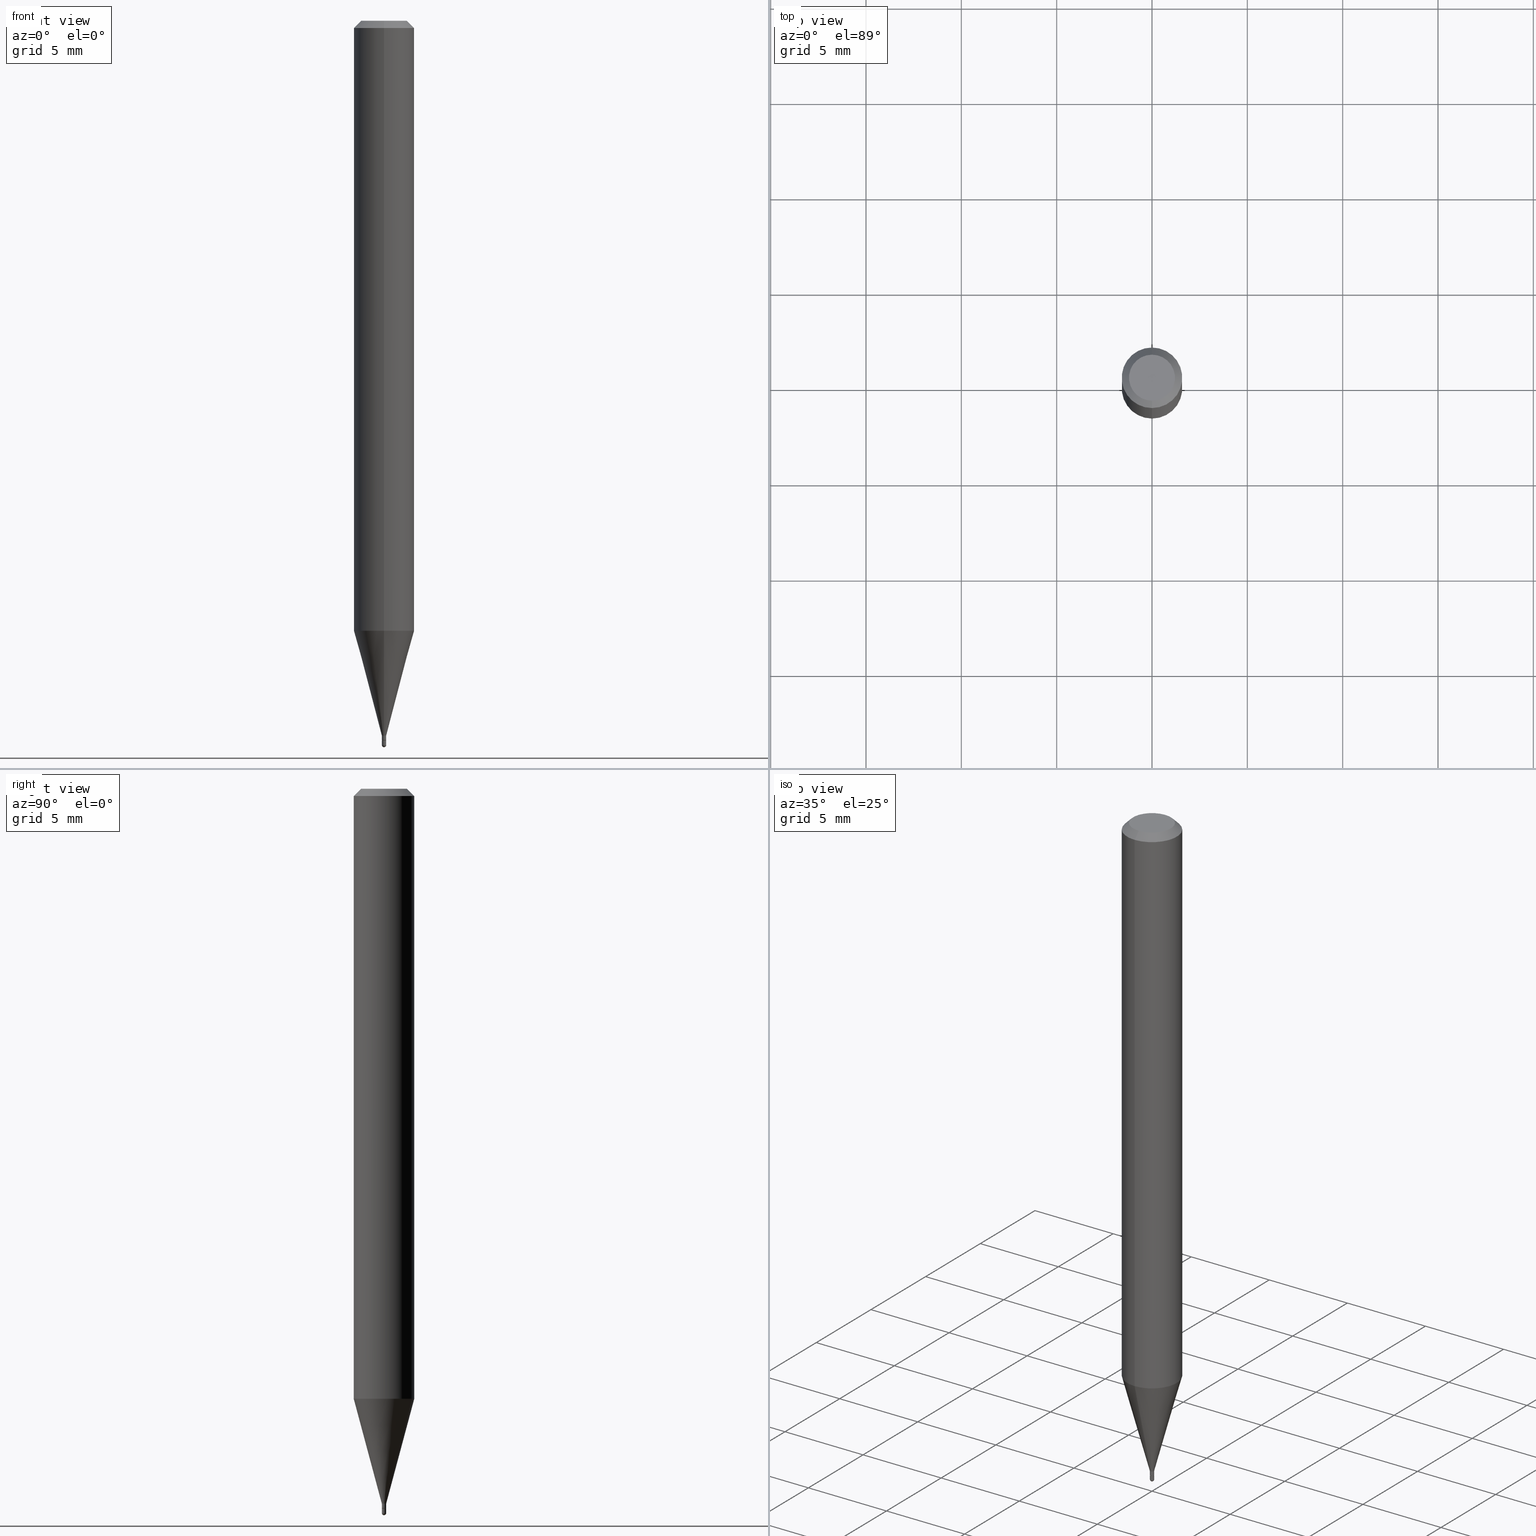
[diagram: canonical four-view strip — front | top / right | iso, engineering-drawing reading convention]
A machine part, canonical four-view strip (front | top / right | iso — engineering-drawing reading convention). The complete STEP part file that produces these views, byte-faithful:
ISO-10303-21;
HEADER;
FILE_DESCRIPTION (( 'STEP AP203' ),
    '1' );
FILE_NAME ('00673.STEP',
    '2024-03-07T18:00:20',
    ( '' ),
    ( '' ),
    'SwSTEP 2.0',
    'SolidWorks 2023',
    '' );
FILE_SCHEMA (( 'CONFIG_CONTROL_DESIGN' ));
ENDSEC;

DATA;
#1 = CARTESIAN_POINT ( 'NONE',  ( 3.633966645991113741E-29, -5.188341269520915288E-15, -1.486000000000000210 ) ) ;
#2 = AXIS2_PLACEMENT_3D ( 'NONE', #282, #399, #48 ) ;
#3 = VECTOR ( 'NONE', #211, 39.37007874015748143 ) ;
#4 = DIRECTION ( 'NONE',  ( -2.445468806185136597E-29, 3.491481338843145583E-15, 1.000000000000000000 ) ) ;
#5 = CIRCLE ( 'NONE', #73, 0.06250000000000000000 ) ;
#6 = ORIENTED_EDGE ( 'NONE', *, *, #191, .T. ) ;
#7 = CARTESIAN_POINT ( 'NONE',  ( 3.633976429077873634E-29, -5.188327259583856289E-15, -1.486000000000000210 ) ) ;
#8 = DIRECTION ( 'NONE',  ( -6.982962677686265922E-15, -1.000000000000000000, 0.000000000000000000 ) ) ;
#9 = VERTEX_POINT ( 'NONE', #132 ) ;
#10 = DIRECTION ( 'NONE',  ( -2.445468806185136597E-29, 3.491481338843145583E-15, 1.000000000000000000 ) ) ;
#11 = CARTESIAN_POINT ( 'NONE',  ( 3.668213084533521426E-31, -5.237207866336330444E-17, -0.01500000000000000812 ) ) ;
#12 = EDGE_CURVE ( 'NONE', #404, #338, #72, .T. ) ;
#13 = DIRECTION ( 'NONE',  ( -2.445468806185136597E-29, 3.491481338843145583E-15, 1.000000000000000000 ) ) ;
#14 = CC_DESIGN_SECURITY_CLASSIFICATION ( #159, ( #38 ) ) ;
#15 = CARTESIAN_POINT ( 'NONE',  ( 3.633976429077873634E-29, -5.188327259583856289E-15, -1.486000000000000210 ) ) ;
#16 = ADVANCED_FACE ( 'NONE', ( #498 ), #302, .T. ) ;
#17 = DIRECTION ( 'NONE',  ( -2.445475389689012778E-29, 3.491471910890885040E-15, 1.000000000000000000 ) ) ;
#18 = DIRECTION ( 'NONE',  ( -6.982962677686265922E-15, -1.000000000000000000, 3.483106191921935554E-15 ) ) ;
#19 = ORIENTED_EDGE ( 'NONE', *, *, #41, .T. ) ;
#20 = DATE_AND_TIME ( #161, #506 ) ;
#21 = FACE_OUTER_BOUND ( 'NONE', #329, .T. ) ;
#22 = ORIENTED_EDGE ( 'NONE', *, *, #510, .F. ) ;
#23 = CALENDAR_DATE ( 2024, 7, 3 ) ;
#24 = CARTESIAN_POINT ( 'NONE',  ( -0.004499999999999999660, 3.197442310920450595E-17, -2.213520790614707297E-31 ) ) ;
#25 = AXIS2_PLACEMENT_3D ( 'NONE', #235, #10, #322 ) ;
#26 = EDGE_LOOP ( 'NONE', ( #127, #502, #299, #375 ) ) ;
#27 = CARTESIAN_POINT ( 'NONE',  ( 3.656813774819742348E-29, -5.222061433299540145E-15, -1.495500000000000274 ) ) ;
#28 = DIRECTION ( 'NONE',  ( -1.000000000000000000, 6.982962677686265922E-15, -4.876176775795935793E-29 ) ) ;
#29 = APPROVAL_ROLE ( '' ) ;
#30 = EDGE_LOOP ( 'NONE', ( #251, #457, #448, #488 ) ) ;
#31 = EDGE_CURVE ( 'NONE', #258, #9, #334, .T. ) ;
#32 = MANIFOLD_SOLID_BREP ( 'Body-Move/Copy2[1]', #385 ) ;
#33 = DIRECTION ( 'NONE',  ( -2.445475389689012497E-29, 3.491471910890885040E-15, 1.000000000000000000 ) ) ;
#34 = VERTEX_POINT ( 'NONE', #387 ) ;
#35 = CARTESIAN_POINT ( 'NONE',  ( 3.656813774819742348E-29, -5.222061433299540145E-15, -1.495500000000000274 ) ) ;
#36 = ORIENTED_EDGE ( 'NONE', *, *, #46, .F. ) ;
#37 = AXIS2_PLACEMENT_3D ( 'NONE', #294, #303, #166 ) ;
#38 = PRODUCT_DEFINITION_FORMATION_WITH_SPECIFIED_SOURCE ( 'ANY', '', #51, .NOT_KNOWN. ) ;
#39 = DIRECTION ( 'NONE',  ( -6.982962677686265922E-15, -1.000000000000000000, 4.370956789862821150E-15 ) ) ;
#40 =( GEOMETRIC_REPRESENTATION_CONTEXT ( 3 ) GLOBAL_UNCERTAINTY_ASSIGNED_CONTEXT ( ( #200 ) ) GLOBAL_UNIT_ASSIGNED_CONTEXT ( ( #351, #501, #421 ) ) REPRESENTATION_CONTEXT ( 'NONE', 'WORKASPACE' ) );
#41 = EDGE_CURVE ( 'NONE', #445, #60, #141, .T. ) ;
#42 = FACE_OUTER_BOUND ( 'NONE', #497, .T. ) ;
#43 = ORIENTED_EDGE ( 'NONE', *, *, #313, .F. ) ;
#44 = AXIS2_PLACEMENT_3D ( 'NONE', #27, #339, #259 ) ;
#45 = FACE_OUTER_BOUND ( 'NONE', #301, .T. ) ;
#46 = EDGE_CURVE ( 'NONE', #384, #176, #276, .T. ) ;
#47 = ORIENTED_EDGE ( 'NONE', *, *, #320, .T. ) ;
#48 = DIRECTION ( 'NONE',  ( -6.982962677686265922E-15, -1.000000000000000000, 3.491471910890885040E-15 ) ) ;
#49 = CYLINDRICAL_SURFACE ( 'NONE', #25, 0.004499999999999999660 ) ;
#50 = ADVANCED_FACE ( 'NONE', ( #273 ), #461, .F. ) ;
#51 = PRODUCT ( '00673', '00673', '', ( #292 ) ) ;
#52 = DIRECTION ( 'NONE',  ( -6.982962677686265922E-15, -1.000000000000000000, 3.491471910890885040E-15 ) ) ;
#53 = DIRECTION ( 'NONE',  ( -6.982962677686265922E-15, -1.000000000000000000, 3.491471910890885040E-15 ) ) ;
#54 = ORIENTED_EDGE ( 'NONE', *, *, #31, .T. ) ;
#55 = CLOSED_SHELL ( 'NONE', ( #162, #186, #423, #66, #272, #184, #371, #289, #50, #308, #352, #470 ) ) ;
#56 = CONICAL_SURFACE ( 'NONE', #379, 0.06250000000000000000, 0.7853981633974483900 ) ;
#57 = CARTESIAN_POINT ( 'NONE',  ( -4.364351673553916201E-16, -0.06250000000000000000, 2.182169944306803150E-16 ) ) ;
#58 = DIRECTION ( 'NONE',  ( 1.000000000000000000, 0.000000000000000000, 0.000000000000000000 ) ) ;
#59 = FACE_OUTER_BOUND ( 'NONE', #86, .T. ) ;
#60 = VERTEX_POINT ( 'NONE', #432 ) ;
#61 = EDGE_CURVE ( 'NONE', #435, #258, #310, .T. ) ;
#62 = ORIENTED_EDGE ( 'NONE', *, *, #320, .F. ) ;
#63 = PLANE ( 'NONE',  #268 ) ;
#64 = CIRCLE ( 'NONE', #425, 0.004499999999999923332 ) ;
#65 = VERTEX_POINT ( 'NONE', #434 ) ;
#66 = ADVANCED_FACE ( 'NONE', ( #45 ), #357, .T. ) ;
#67 = LENGTH_MEASURE_WITH_UNIT ( LENGTH_MEASURE( 0.02539999999999999897 ), #269 );
#68 = VERTEX_POINT ( 'NONE', #156 ) ;
#69 = CARTESIAN_POINT ( 'NONE',  ( 3.668213084533521426E-31, -5.237207866336330444E-17, -0.01500000000000000812 ) ) ;
#70 = ORIENTED_EDGE ( 'NONE', *, *, #274, .F. ) ;
#71 = CARTESIAN_POINT ( 'NONE',  ( 0.000000000000000000, 0.000000000000000000, 0.000000000000000000 ) ) ;
#72 = CIRCLE ( 'NONE', #44, 0.004499999999999955425 ) ;
#73 = AXIS2_PLACEMENT_3D ( 'NONE', #147, #467, #262 ) ;
#74 = EDGE_CURVE ( 'NONE', #9, #445, #189, .T. ) ;
#75 = CONICAL_SURFACE ( 'NONE', #151, 0.06250000000000000000, 0.7853981633974483900 ) ;
#76 = APPROVAL_PERSON_ORGANIZATION ( #477, #327, #29 ) ;
#77 = CARTESIAN_POINT ( 'NONE',  ( 3.668213084533521426E-31, -5.237207866336330444E-17, -0.01500000000000000812 ) ) ;
#78 = EDGE_CURVE ( 'NONE', #338, #435, #472, .T. ) ;
#79 = ADVANCED_BREP_SHAPE_REPRESENTATION ( '00673', ( #32, #372, #249 ), #40 ) ;
#80 = DIRECTION ( 'NONE',  ( -6.982962677686265133E-15, -1.000000000000000000, 0.000000000000000000 ) ) ;
#81 = CARTESIAN_POINT ( 'NONE',  ( 3.609521675180982747E-29, -5.153412540474946125E-15, -1.475999999999999979 ) ) ;
#82 = EDGE_CURVE ( 'NONE', #216, #176, #125, .T. ) ;
#83 = CARTESIAN_POINT ( 'NONE',  ( 3.657198599649872484E-29, -5.221510342239925433E-15, -1.495500000000000496 ) ) ;
#84 = VERTEX_POINT ( 'NONE', #475 ) ;
#85 = CARTESIAN_POINT ( 'NONE',  ( 3.632753691383029286E-29, -5.186581523628410386E-15, -1.485500000000000265 ) ) ;
#86 = EDGE_LOOP ( 'NONE', ( #346, #493, #433, #263 ) ) ;
#87 = CARTESIAN_POINT ( 'NONE',  ( 2.380318164796668072E-16, 0.004499999999994770336, -1.475999999999999979 ) ) ;
#88 = CARTESIAN_POINT ( 'NONE',  ( -3.773273898774340269E-16, -0.04749999999999999362, 1.569841483477535198E-16 ) ) ;
#89 = ORIENTED_EDGE ( 'NONE', *, *, #120, .F. ) ;
#90 = EDGE_CURVE ( 'NONE', #60, #445, #491, .T. ) ;
#91 = CARTESIAN_POINT ( 'NONE',  ( 4.440892098500625669E-16, 0.06250000000000000000, -2.182169944306803150E-16 ) ) ;
#92 = AXIS2_PLACEMENT_3D ( 'NONE', #153, #118, #52 ) ;
#93 = CC_DESIGN_PERSON_AND_ORGANIZATION_ASSIGNMENT ( #336, #252, ( #51 ) ) ;
#94 = LOCAL_TIME ( 13, 0, 20.00000000000000000, #500 ) ;
#95 = EDGE_LOOP ( 'NONE', ( #19, #454 ) ) ;
#96 = DIRECTION ( 'NONE',  ( -2.445475389689012778E-29, 3.491471910890885040E-15, 1.000000000000000000 ) ) ;
#97 = DATE_AND_TIME ( #490, #94 ) ;
#98 = CARTESIAN_POINT ( 'NONE',  ( 3.142333204962461525E-17, 0.004499999999994755591, -1.495500000000000496 ) ) ;
#99 = EDGE_LOOP ( 'NONE', ( #62, #70 ) ) ;
#100 = PERSON_AND_ORGANIZATION ( #449, #285 ) ;
#101 = LINE ( 'NONE', #24, #227 ) ;
#102 = EDGE_CURVE ( 'NONE', #173, #216, #64, .T. ) ;
#103 = ORIENTED_EDGE ( 'NONE', *, *, #391, .T. ) ;
#104 = CC_DESIGN_PERSON_AND_ORGANIZATION_ASSIGNMENT ( #440, #321, ( #182 ) ) ;
#105 = FACE_OUTER_BOUND ( 'NONE', #350, .T. ) ;
#106 = EDGE_CURVE ( 'NONE', #9, #338, #408, .T. ) ;
#107 = CARTESIAN_POINT ( 'NONE',  ( 3.668213084533521426E-31, -5.237207866336330444E-17, -0.01500000000000000812 ) ) ;
#108 = VERTEX_POINT ( 'NONE', #280 ) ;
#109 = APPROVAL_PERSON_ORGANIZATION ( #233, #476, #471 ) ;
#110 = DIRECTION ( 'NONE',  ( -7.105427357601001859E-15, -1.000000000000000000, 0.000000000000000000 ) ) ;
#111 = VERTEX_POINT ( 'NONE', #88 ) ;
#112 = CYLINDRICAL_SURFACE ( 'NONE', #205, 0.004499999999999924200 ) ;
#113 = AXIS2_PLACEMENT_3D ( 'NONE', #230, #196, #356 ) ;
#114 = APPROVAL_PERSON_ORGANIZATION ( #100, #418, #195 ) ;
#115 = DIRECTION ( 'NONE',  ( 2.445475389689012778E-29, -3.491471910890885040E-15, -1.000000000000000000 ) ) ;
#116 = AXIS2_PLACEMENT_3D ( 'NONE', #388, #226, #181 ) ;
#117 = DIRECTION ( 'NONE',  ( 4.937700262164548042E-15, 0.7071067811865451302, -0.7071067811865499042 ) ) ;
#118 = DIRECTION ( 'NONE',  ( -2.445475389689012778E-29, 3.491471910890885040E-15, 1.000000000000000000 ) ) ;
#119 = ORIENTED_EDGE ( 'NONE', *, *, #74, .F. ) ;
#120 = EDGE_CURVE ( 'NONE', #111, #65, #122, .T. ) ;
#121 = DIRECTION ( 'NONE',  ( -2.445475389689012778E-29, 3.491471910890885040E-15, 1.000000000000000000 ) ) ;
#122 = LINE ( 'NONE', #436, #178 ) ;
#123 = EDGE_CURVE ( 'NONE', #216, #173, #169, .T. ) ;
#124 = CC_DESIGN_APPROVAL ( #327, ( #159 ) ) ;
#125 = LINE ( 'NONE', #128, #284 ) ;
#126 = LINE ( 'NONE', #57, #473 ) ;
#127 = ORIENTED_EDGE ( 'NONE', *, *, #451, .F. ) ;
#128 = CARTESIAN_POINT ( 'NONE',  ( -3.142333204955156550E-17, -0.004500000000005076328, -1.475999999999999979 ) ) ;
#129 = ORIENTED_EDGE ( 'NONE', *, *, #241, .T. ) ;
#130 = ORIENTED_EDGE ( 'NONE', *, *, #102, .F. ) ;
#131 = PRODUCT_RELATED_PRODUCT_CATEGORY ( 'detail', '', ( #51 ) ) ;
#132 = CARTESIAN_POINT ( 'NONE',  ( 0.004499999999999999660, -5.236349137930008608E-15, -1.495500000000000496 ) ) ;
#133 = LINE ( 'NONE', #446, #185 ) ;
#134 = ORIENTED_EDGE ( 'NONE', *, *, #90, .F. ) ;
#135 = CARTESIAN_POINT ( 'NONE',  ( 3.632753691383029286E-29, -5.186581523628410386E-15, -1.485500000000000265 ) ) ;
#136 = DIRECTION ( 'NONE',  ( -6.982962677686265133E-15, -1.000000000000000000, 0.000000000000000000 ) ) ;
#137 = ORIENTED_EDGE ( 'NONE', *, *, #82, .T. ) ;
#138 = APPROVAL_DATE_TIME ( #97, #327 ) ;
#139 = ORIENTED_EDGE ( 'NONE', *, *, #479, .F. ) ;
#140 = CC_DESIGN_PERSON_AND_ORGANIZATION_ASSIGNMENT ( #368, #317, ( #38 ) ) ;
#141 = CIRCLE ( 'NONE', #217, 0.004499999999999999660 ) ;
#142 = LINE ( 'NONE', #341, #293 ) ;
#143 = ORIENTED_EDGE ( 'NONE', *, *, #74, .T. ) ;
#144 = ORIENTED_EDGE ( 'NONE', *, *, #102, .T. ) ;
#145 = EDGE_CURVE ( 'NONE', #34, #108, #460, .T. ) ;
#146 = ADVANCED_FACE ( 'NONE', ( #400 ), #49, .T. ) ;
#147 = CARTESIAN_POINT ( 'NONE',  ( 3.080176647808220565E-29, -4.397652207725574751E-15, -1.259541053161005841 ) ) ;
#148 = CARTESIAN_POINT ( 'NONE',  ( 4.364351673553919652E-16, 0.06249999999999995143, -0.01500000000000022669 ) ) ;
#149 = DIRECTION ( 'NONE',  ( -2.445475389689012778E-29, 3.491471910890885040E-15, 1.000000000000000000 ) ) ;
#150 = ORIENTED_EDGE ( 'NONE', *, *, #241, .F. ) ;
#151 = AXIS2_PLACEMENT_3D ( 'NONE', #77, #115, #275 ) ;
#152 = DIRECTION ( 'NONE',  ( -2.445468806185136877E-29, 3.491481338843145188E-15, 1.000000000000000000 ) ) ;
#153 = CARTESIAN_POINT ( 'NONE',  ( 0.000000000000000000, 0.000000000000000000, 0.000000000000000000 ) ) ;
#154 = PRODUCT_DEFINITION_SHAPE ( 'NONE', 'NONE',  #182 ) ;
#155 = PERSON_AND_ORGANIZATION ( #449, #285 ) ;
#156 = CARTESIAN_POINT ( 'NONE',  ( -2.793185071070872476E-17, -0.004000000000005187774, -1.486000000000000210 ) ) ;
#157 = CARTESIAN_POINT ( 'NONE',  ( 4.440892098500935790E-16, 0.06249999999999995143, -0.01500000000000022669 ) ) ;
#158 = CONICAL_SURFACE ( 'NONE', #232, 0.004499999999999923332, 0.2617993877991504625 ) ;
#159 = SECURITY_CLASSIFICATION ( '', '', #279 ) ;
#160 = DIRECTION ( 'NONE',  ( 5.024295867788190974E-15, 0.7071067811865681119, 0.7071067811865270336 ) ) ;
#161 = CALENDAR_DATE ( 2024, 7, 3 ) ;
#162 = ADVANCED_FACE ( 'NONE', ( #369 ), #480, .T. ) ;
#163 = APPLICATION_PROTOCOL_DEFINITION ( 'international standard', 'config_control_design', 1994, #214 ) ;
#164 = DIRECTION ( 'NONE',  ( -6.982962677686265922E-15, -1.000000000000000000, 0.000000000000000000 ) ) ;
#165 = ORIENTED_EDGE ( 'NONE', *, *, #442, .F. ) ;
#166 = DIRECTION ( 'NONE',  ( 1.000000000000000000, -6.982962677686266711E-15, 4.876176775795935232E-29 ) ) ;
#167 = ORIENTED_EDGE ( 'NONE', *, *, #145, .T. ) ;
#168 = DATE_AND_TIME ( #23, #316 ) ;
#169 = CIRCLE ( 'NONE', #386, 0.004499999999999923332 ) ;
#170 = CC_DESIGN_APPROVAL ( #418, ( #38 ) ) ;
#171 = CARTESIAN_POINT ( 'NONE',  ( 3.633976429077873634E-29, -5.188327259583856289E-15, -1.486000000000000210 ) ) ;
#172 = VERTEX_POINT ( 'NONE', #286 ) ;
#173 = VERTEX_POINT ( 'NONE', #87 ) ;
#174 = DIRECTION ( 'NONE',  ( -1.000000000000000000, 6.982962677686265922E-15, -4.883557194083112340E-29 ) ) ;
#175 = DIRECTION ( 'NONE',  ( -6.982962677686265922E-15, -1.000000000000000000, 3.483106191921935554E-15 ) ) ;
#176 = VERTEX_POINT ( 'NONE', #314 ) ;
#177 = DIRECTION ( 'NONE',  ( -2.445475389689012778E-29, 3.491471910890885040E-15, 1.000000000000000000 ) ) ;
#178 = VECTOR ( 'NONE', #201, 39.37007874015748143 ) ;
#179 = EDGE_LOOP ( 'NONE', ( #167, #220, #464, #382 ) ) ;
#180 = CIRCLE ( 'NONE', #238, 0.004499999999999955425 ) ;
#181 = DIRECTION ( 'NONE',  ( 1.000000000000000000, -6.982962677686225690E-15, 0.000000000000000000 ) ) ;
#182 = PRODUCT_DEFINITION ( 'UNKNOWN', '', #38, #210 ) ;
#183 = FACE_OUTER_BOUND ( 'NONE', #26, .T. ) ;
#184 = ADVANCED_FACE ( 'NONE', ( #42 ), #248, .T. ) ;
#185 = VECTOR ( 'NONE', #406, 39.37007874015748143 ) ;
#186 = ADVANCED_FACE ( 'NONE', ( #21 ), #192, .T. ) ;
#187 = LINE ( 'NONE', #148, #311 ) ;
#188 = CALENDAR_DATE ( 2024, 7, 3 ) ;
#189 = LINE ( 'NONE', #478, #511 ) ;
#190 = DIRECTION ( 'NONE',  ( -6.982962677686265922E-15, -1.000000000000000000, 0.000000000000000000 ) ) ;
#191 = EDGE_CURVE ( 'NONE', #435, #60, #101, .T. ) ;
#192 = CONICAL_SURFACE ( 'NONE', #416, 0.004000000000000000083, 0.7853981633974739252 ) ;
#193 = DATE_TIME_ROLE ( 'classification_date' ) ;
#194 = CARTESIAN_POINT ( 'NONE',  ( 3.657198599649872484E-29, -5.221510342239925433E-15, -1.495500000000000496 ) ) ;
#195 = APPROVAL_ROLE ( '' ) ;
#196 = DIRECTION ( 'NONE',  ( 2.445475389689012497E-29, -3.491471910890885040E-15, -1.000000000000000000 ) ) ;
#197 = PERSON_AND_ORGANIZATION_ROLE ( 'classification_officer' ) ;
#198 = DIRECTION ( 'NONE',  ( -2.445468806185136597E-29, 3.491481338843145583E-15, 1.000000000000000000 ) ) ;
#199 = DATE_AND_TIME ( #401, #397 ) ;
#200 = UNCERTAINTY_MEASURE_WITH_UNIT (LENGTH_MEASURE( 1.000000000000000082E-05 ), #351, 'distance_accuracy_value', 'NONE');
#201 = DIRECTION ( 'NONE',  ( -4.851104656540964275E-15, -0.7071067811865500152, -0.7071067811865450192 ) ) ;
#202 = DIRECTION ( 'NONE',  ( 1.839019923739601499E-15, 0.2588190451025251249, 0.9659258262890670910 ) ) ;
#203 = COORDINATED_UNIVERSAL_TIME_OFFSET ( 5, 0, .BEHIND. ) ;
#204 = AXIS2_PLACEMENT_3D ( 'NONE', #389, #174, #266 ) ;
#205 = AXIS2_PLACEMENT_3D ( 'NONE', #309, #349, #383 ) ;
#206 = SPHERICAL_SURFACE ( 'NONE', #481, 0.004499999999999955425 ) ;
#207 = SHAPE_DEFINITION_REPRESENTATION ( #154, #79 ) ;
#208 = CARTESIAN_POINT ( 'NONE',  ( 3.668010796862640388E-29, -5.237497553794526716E-15, -1.500000000000000222 ) ) ;
#209 = APPROVAL_STATUS ( 'not_yet_approved' ) ;
#210 = DESIGN_CONTEXT ( 'detailed design', #366, 'design' ) ;
#211 = DIRECTION ( 'NONE',  ( -2.445475389689012497E-29, 3.491471910890885040E-15, 1.000000000000000000 ) ) ;
#212 = LINE ( 'NONE', #483, #261 ) ;
#213 = ORIENTED_EDGE ( 'NONE', *, *, #451, .T. ) ;
#214 = APPLICATION_CONTEXT ( 'configuration controlled 3d designs of mechanical parts and assemblies' ) ;
#215 = ADVANCED_FACE ( 'NONE', ( #105 ), #297, .T. ) ;
#216 = VERTEX_POINT ( 'NONE', #462 ) ;
#217 = AXIS2_PLACEMENT_3D ( 'NONE', #468, #503, #271 ) ;
#218 = CARTESIAN_POINT ( 'NONE',  ( 3.142333204962453513E-17, 0.004499999999994811102, -1.486000000000000210 ) ) ;
#219 = VECTOR ( 'NONE', #202, 39.37007874015748854 ) ;
#220 = ORIENTED_EDGE ( 'NONE', *, *, #510, .T. ) ;
#221 = ORIENTED_EDGE ( 'NONE', *, *, #407, .T. ) ;
#222 = EDGE_CURVE ( 'NONE', #68, #34, #133, .T. ) ;
#223 = CARTESIAN_POINT ( 'NONE',  ( -0.004499999999999999660, -5.172951382771215824E-15, -1.495500000000000496 ) ) ;
#224 = EDGE_LOOP ( 'NONE', ( #381, #221, #139, #485 ) ) ;
#225 = ADVANCED_FACE ( 'NONE', ( #59 ), #206, .T. ) ;
#226 = DIRECTION ( 'NONE',  ( -2.445468806185136597E-29, 3.491481338843145583E-15, 1.000000000000000000 ) ) ;
#227 = VECTOR ( 'NONE', #246, 39.37007874015748143 ) ;
#228 = DIRECTION ( 'NONE',  ( 0.000000000000000000, 0.000000000000000000, 1.000000000000000000 ) ) ;
#229 = CIRCLE ( 'NONE', #495, 0.06250000000000000000 ) ;
#230 = CARTESIAN_POINT ( 'NONE',  ( 3.316907271900976096E-16, 0.04749999999999999362, -1.702752994770987529E-16 ) ) ;
#231 = CC_DESIGN_PERSON_AND_ORGANIZATION_ASSIGNMENT ( #420, #270, ( #38 ) ) ;
#232 = AXIS2_PLACEMENT_3D ( 'NONE', #260, #177, #424 ) ;
#233 = PERSON_AND_ORGANIZATION ( #449, #285 ) ;
#234 = EDGE_CURVE ( 'NONE', #108, #34, #290, .T. ) ;
#235 = CARTESIAN_POINT ( 'NONE',  ( 0.000000000000000000, 0.000000000000000000, 0.000000000000000000 ) ) ;
#236 = ORIENTED_EDGE ( 'NONE', *, *, #41, .F. ) ;
#237 = ORIENTED_EDGE ( 'NONE', *, *, #78, .T. ) ;
#238 = AXIS2_PLACEMENT_3D ( 'NONE', #35, #465, #110 ) ;
#239 = FACE_OUTER_BOUND ( 'NONE', #296, .T. ) ;
#240 = DIRECTION ( 'NONE',  ( 1.000000000000000000, -6.982962677686225690E-15, 0.000000000000000000 ) ) ;
#241 = EDGE_CURVE ( 'NONE', #384, #398, #456, .T. ) ;
#242 = COORDINATED_UNIVERSAL_TIME_OFFSET ( 5, 0, .BEHIND. ) ;
#243 = DIRECTION ( 'NONE',  ( -2.445475389689012778E-29, 3.491471910890885040E-15, 1.000000000000000000 ) ) ;
#244 = LINE ( 'NONE', #492, #219 ) ;
#245 = ORIENTED_EDGE ( 'NONE', *, *, #191, .F. ) ;
#246 = DIRECTION ( 'NONE',  ( -2.445468806185136877E-29, 3.491481338843145188E-15, 1.000000000000000000 ) ) ;
#247 = DIRECTION ( 'NONE',  ( -2.445475389689012497E-29, 3.491471910890885040E-15, 1.000000000000000000 ) ) ;
#248 = CONICAL_SURFACE ( 'NONE', #430, 0.004499999999999923332, 0.2617993877991504625 ) ;
#249 = AXIS2_PLACEMENT_3D ( 'NONE', #71, #228, #58 ) ;
#250 = DIRECTION ( 'NONE',  ( -6.982962677686265133E-15, -1.000000000000000000, 0.000000000000000000 ) ) ;
#251 = ORIENTED_EDGE ( 'NONE', *, *, #412, .F. ) ;
#252 = PERSON_AND_ORGANIZATION_ROLE ( 'design_owner' ) ;
#253 = ADVANCED_FACE ( 'NONE', ( #256 ), #63, .F. ) ;
#254 = FACE_OUTER_BOUND ( 'NONE', #342, .T. ) ;
#255 = ORIENTED_EDGE ( 'NONE', *, *, #405, .T. ) ;
#256 = FACE_OUTER_BOUND ( 'NONE', #95, .T. ) ;
#257 = CYLINDRICAL_SURFACE ( 'NONE', #324, 0.06250000000000000000 ) ;
#258 = VERTEX_POINT ( 'NONE', #300 ) ;
#259 = DIRECTION ( 'NONE',  ( 6.982962677686266711E-15, 1.000000000000000000, 0.000000000000000000 ) ) ;
#260 = CARTESIAN_POINT ( 'NONE',  ( 3.609521675180982747E-29, -5.153412540474946125E-15, -1.475999999999999979 ) ) ;
#261 = VECTOR ( 'NONE', #247, 39.37007874015748143 ) ;
#262 = DIRECTION ( 'NONE',  ( -6.982962677686265922E-15, -1.000000000000000000, 4.370956789862821150E-15 ) ) ;
#263 = ORIENTED_EDGE ( 'NONE', *, *, #78, .F. ) ;
#264 = DIRECTION ( 'NONE',  ( 6.982962677686265922E-15, 1.000000000000000000, -3.483106191921935554E-15 ) ) ;
#265 = ORIENTED_EDGE ( 'NONE', *, *, #61, .T. ) ;
#266 = DIRECTION ( 'NONE',  ( 6.982962677686265922E-15, 1.000000000000000000, 0.000000000000000000 ) ) ;
#267 = DIRECTION ( 'NONE',  ( -2.445475389689012778E-29, 3.491471910890885040E-15, 1.000000000000000000 ) ) ;
#268 = AXIS2_PLACEMENT_3D ( 'NONE', #218, #380, #28 ) ;
#269 =( LENGTH_UNIT ( ) NAMED_UNIT ( * ) SI_UNIT ( $, .METRE. ) );
#270 = PERSON_AND_ORGANIZATION_ROLE ( 'creator' ) ;
#271 = DIRECTION ( 'NONE',  ( 1.000000000000000000, -6.982962677686225690E-15, 0.000000000000000000 ) ) ;
#272 = ADVANCED_FACE ( 'NONE', ( #458 ), #158, .T. ) ;
#273 = FACE_OUTER_BOUND ( 'NONE', #422, .T. ) ;
#274 = EDGE_CURVE ( 'NONE', #84, #68, #291, .T. ) ;
#275 = DIRECTION ( 'NONE',  ( 6.982962677686265922E-15, 1.000000000000000000, -3.483106191921935554E-15 ) ) ;
#276 = CIRCLE ( 'NONE', #437, 0.06250000000000000000 ) ;
#277 = AXIS2_PLACEMENT_3D ( 'NONE', #11, #447, #18 ) ;
#278 = DIRECTION ( 'NONE',  ( -2.445475389689012778E-29, 3.491471910890885040E-15, 1.000000000000000000 ) ) ;
#279 = SECURITY_CLASSIFICATION_LEVEL ( 'unclassified' ) ;
#280 = CARTESIAN_POINT ( 'NONE',  ( 3.197442310924019574E-17, 0.004499999999994723499, -1.485500000000000265 ) ) ;
#281 = ORIENTED_EDGE ( 'NONE', *, *, #507, .F. ) ;
#282 = CARTESIAN_POINT ( 'NONE',  ( 3.633976429077873634E-29, -5.188327259583856289E-15, -1.486000000000000210 ) ) ;
#283 = ORIENTED_EDGE ( 'NONE', *, *, #234, .T. ) ;
#284 = VECTOR ( 'NONE', #318, 39.37007874015748854 ) ;
#285 = ORGANIZATION ( 'UNSPECIFIED', 'UNSPECIFIED', '' ) ;
#286 = CARTESIAN_POINT ( 'NONE',  ( 3.840629472727447874E-16, 0.04749999999999999362, -1.747056831868805136E-16 ) ) ;
#287 = ORIENTED_EDGE ( 'NONE', *, *, #313, .T. ) ;
#288 = ORIENTED_EDGE ( 'NONE', *, *, #378, .F. ) ;
#289 = ADVANCED_FACE ( 'NONE', ( #239 ), #75, .T. ) ;
#290 = CIRCLE ( 'NONE', #323, 0.004499999999999924200 ) ;
#291 = CIRCLE ( 'NONE', #390, 0.004000000000000000083 ) ;
#292 = MECHANICAL_CONTEXT ( 'NONE', #214, 'mechanical' ) ;
#293 = VECTOR ( 'NONE', #33, 39.37007874015748143 ) ;
#294 = CARTESIAN_POINT ( 'NONE',  ( 0.000000000000000000, 0.000000000000000000, 0.000000000000000000 ) ) ;
#295 = CARTESIAN_POINT ( 'NONE',  ( 0.000000000000000000, 0.000000000000000000, 0.000000000000000000 ) ) ;
#296 = EDGE_LOOP ( 'NONE', ( #89, #288, #415, #287 ) ) ;
#297 = CYLINDRICAL_SURFACE ( 'NONE', #37, 0.004499999999999999660 ) ;
#298 = CARTESIAN_POINT ( 'NONE',  ( 2.166878865830070512E-46, -3.093712055434299355E-32, -8.860767419563479969E-18 ) ) ;
#299 = ORIENTED_EDGE ( 'NONE', *, *, #442, .T. ) ;
#300 = CARTESIAN_POINT ( 'NONE',  ( -3.197442310916777461E-17, -0.004500000000005199494, -1.495500000000000496 ) ) ;
#301 = EDGE_LOOP ( 'NONE', ( #505, #129, #165, #413 ) ) ;
#302 = SPHERICAL_SURFACE ( 'NONE', #204, 0.004499999999999955425 ) ;
#303 = DIRECTION ( 'NONE',  ( -2.445468806185136597E-29, 3.491481338843145583E-15, 1.000000000000000000 ) ) ;
#304 = AXIS2_PLACEMENT_3D ( 'NONE', #298, #328, #410 ) ;
#305 = DIRECTION ( 'NONE',  ( -2.445475389689012778E-29, 3.491471910890885040E-15, 1.000000000000000000 ) ) ;
#306 = ORIENTED_EDGE ( 'NONE', *, *, #12, .T. ) ;
#307 = CARTESIAN_POINT ( 'NONE',  ( 0.004499999999999999660, -5.219764601570503141E-15, -1.486000000000000210 ) ) ;
#308 = ADVANCED_FACE ( 'NONE', ( #441 ), #429, .F. ) ;
#309 = CARTESIAN_POINT ( 'NONE',  ( 0.000000000000000000, 0.000000000000000000, 0.000000000000000000 ) ) ;
#310 = CIRCLE ( 'NONE', #360, 0.004499999999999999660 ) ;
#311 = VECTOR ( 'NONE', #117, 39.37007874015748143 ) ;
#312 = EDGE_CURVE ( 'NONE', #172, #398, #187, .T. ) ;
#313 = EDGE_CURVE ( 'NONE', #398, #65, #450, .T. ) ;
#314 = CARTESIAN_POINT ( 'NONE',  ( -4.364351673553608052E-16, -0.06250000000000439926, -1.259541053161005397 ) ) ;
#315 = AXIS2_PLACEMENT_3D ( 'NONE', #83, #326, #365 ) ;
#316 = LOCAL_TIME ( 13, 0, 20.00000000000000000, #203 ) ;
#317 = PERSON_AND_ORGANIZATION_ROLE ( 'design_supplier' ) ;
#318 = DIRECTION ( 'NONE',  ( -1.807323732225331323E-15, -0.2588190451025183525, 0.9659258262890689783 ) ) ;
#319 = ORIENTED_EDGE ( 'NONE', *, *, #46, .T. ) ;
#320 = EDGE_CURVE ( 'NONE', #68, #84, #335, .T. ) ;
#321 = PERSON_AND_ORGANIZATION_ROLE ( 'creator' ) ;
#322 = DIRECTION ( 'NONE',  ( 1.000000000000000000, -6.982962677686266711E-15, 4.876176775795935232E-29 ) ) ;
#323 = AXIS2_PLACEMENT_3D ( 'NONE', #135, #17, #164 ) ;
#324 = AXIS2_PLACEMENT_3D ( 'NONE', #295, #403, #53 ) ;
#325 = COORDINATED_UNIVERSAL_TIME_OFFSET ( 5, 0, .BEHIND. ) ;
#326 = DIRECTION ( 'NONE',  ( -2.445468806185136597E-29, 3.491481338843145583E-15, 1.000000000000000000 ) ) ;
#327 = APPROVAL ( #487, 'UNSPECIFIED' ) ;
#328 = DIRECTION ( 'NONE',  ( -2.445475389689012778E-29, 3.491471910890885040E-15, 1.000000000000000000 ) ) ;
#329 = EDGE_LOOP ( 'NONE', ( #47, #377, #411, #331 ) ) ;
#330 = DIRECTION ( 'NONE',  ( -2.445475389689012778E-29, 3.491471910890885040E-15, 1.000000000000000000 ) ) ;
#331 = ORIENTED_EDGE ( 'NONE', *, *, #222, .F. ) ;
#332 = CARTESIAN_POINT ( 'NONE',  ( 4.440892098500933817E-16, 0.06249999999999561462, -1.259541053161006063 ) ) ;
#333 = EDGE_LOOP ( 'NONE', ( #237, #6, #236, #119, #474 ) ) ;
#334 = CIRCLE ( 'NONE', #116, 0.004499999999999999660 ) ;
#335 = CIRCLE ( 'NONE', #417, 0.004000000000000000083 ) ;
#336 = PERSON_AND_ORGANIZATION ( #449, #285 ) ;
#337 = DIRECTION ( 'NONE',  ( -2.445475389689012778E-29, 3.491471910890885040E-15, 1.000000000000000000 ) ) ;
#338 = VERTEX_POINT ( 'NONE', #98 ) ;
#339 = DIRECTION ( 'NONE',  ( 1.000000000000000000, -6.982962677686265922E-15, 4.883557194083112340E-29 ) ) ;
#340 = DIRECTION ( 'NONE',  ( -6.982962677686265133E-15, -1.000000000000000000, 0.000000000000000000 ) ) ;
#341 = CARTESIAN_POINT ( 'NONE',  ( 3.197442310920396361E-17, 0.004499999999999924200, -1.571162359900871708E-17 ) ) ;
#342 = EDGE_LOOP ( 'NONE', ( #150, #319, #255, #43 ) ) ;
#343 = APPROVAL_DATE_TIME ( #199, #418 ) ;
#344 = DIRECTION ( 'NONE',  ( -6.982962677686265922E-15, -1.000000000000000000, 0.000000000000000000 ) ) ;
#345 = DIRECTION ( 'NONE',  ( 2.445475389689012778E-29, -3.491471910890885040E-15, -1.000000000000000000 ) ) ;
#346 = ORIENTED_EDGE ( 'NONE', *, *, #12, .F. ) ;
#347 = AXIS2_PLACEMENT_3D ( 'NONE', #393, #243, #392 ) ;
#348 = CONICAL_SURFACE ( 'NONE', #438, 0.004000000000000000083, 0.7853981633974739252 ) ;
#349 = DIRECTION ( 'NONE',  ( -2.445475389689012778E-29, 3.491471910890885040E-15, 1.000000000000000000 ) ) ;
#350 = EDGE_LOOP ( 'NONE', ( #245, #265, #54, #143, #134 ) ) ;
#351 =( CONVERSION_BASED_UNIT ( 'INCH', #67 ) LENGTH_UNIT ( ) NAMED_UNIT ( #355 ) );
#352 = ADVANCED_FACE ( 'NONE', ( #373 ), #348, .T. ) ;
#353 = AXIS2_PLACEMENT_3D ( 'NONE', #444, #198, #240 ) ;
#354 = CC_DESIGN_APPROVAL ( #476, ( #182 ) ) ;
#355 = DIMENSIONAL_EXPONENTS ( 1.000000000000000000, 0.000000000000000000, 0.000000000000000000, 0.000000000000000000, 0.000000000000000000, 0.000000000000000000, 0.000000000000000000 ) ;
#356 = DIRECTION ( 'NONE',  ( 6.982962677686265922E-15, 1.000000000000000000, -3.491471910890885040E-15 ) ) ;
#357 = CYLINDRICAL_SURFACE ( 'NONE', #92, 0.06250000000000000000 ) ;
#358 = APPROVAL_STATUS ( 'not_yet_approved' ) ;
#359 = DIRECTION ( 'NONE',  ( 1.000000000000000000, -6.982962677686225690E-15, 0.000000000000000000 ) ) ;
#360 = AXIS2_PLACEMENT_3D ( 'NONE', #194, #13, #395 ) ;
#361 = VECTOR ( 'NONE', #160, 39.37007874015748143 ) ;
#362 = EDGE_LOOP ( 'NONE', ( #22, #283, #103, #130 ) ) ;
#363 = CC_DESIGN_PERSON_AND_ORGANIZATION_ASSIGNMENT ( #155, #197, ( #159 ) ) ;
#364 = CARTESIAN_POINT ( 'NONE',  ( 3.609521675180982747E-29, -5.153412540474946125E-15, -1.475999999999999979 ) ) ;
#365 = DIRECTION ( 'NONE',  ( 1.000000000000000000, -6.982962677686225690E-15, 0.000000000000000000 ) ) ;
#366 = APPLICATION_CONTEXT ( 'configuration controlled 3d designs of mechanical parts and assemblies' ) ;
#367 = CC_DESIGN_DATE_AND_TIME_ASSIGNMENT ( #20, #486, ( #182 ) ) ;
#368 = PERSON_AND_ORGANIZATION ( #449, #285 ) ;
#369 = FACE_OUTER_BOUND ( 'NONE', #179, .T. ) ;
#370 = LINE ( 'NONE', #453, #361 ) ;
#371 = ADVANCED_FACE ( 'NONE', ( #254 ), #257, .T. ) ;
#372 = MANIFOLD_SOLID_BREP ( 'Body-Move/Copy2[2]', #55 ) ;
#373 = FACE_OUTER_BOUND ( 'NONE', #30, .T. ) ;
#374 = CARTESIAN_POINT ( 'NONE',  ( 3.609521675180982747E-29, -5.153412540474946125E-15, -1.475999999999999979 ) ) ;
#375 = ORIENTED_EDGE ( 'NONE', *, *, #312, .F. ) ;
#376 = CARTESIAN_POINT ( 'NONE',  ( 3.633976429077873634E-29, -5.188327259583856289E-15, -1.486000000000000210 ) ) ;
#377 = ORIENTED_EDGE ( 'NONE', *, *, #412, .T. ) ;
#378 = EDGE_CURVE ( 'NONE', #172, #111, #431, .T. ) ;
#379 = AXIS2_PLACEMENT_3D ( 'NONE', #69, #345, #264 ) ;
#380 = DIRECTION ( 'NONE',  ( 2.438088387897960049E-29, -3.491481338843145188E-15, -1.000000000000000000 ) ) ;
#381 = ORIENTED_EDGE ( 'NONE', *, *, #123, .T. ) ;
#382 = ORIENTED_EDGE ( 'NONE', *, *, #391, .F. ) ;
#383 = DIRECTION ( 'NONE',  ( -6.982962677686265133E-15, -1.000000000000000000, 3.491471910890884646E-15 ) ) ;
#384 = VERTEX_POINT ( 'NONE', #332 ) ;
#385 = CLOSED_SHELL ( 'NONE', ( #146, #225, #253, #16, #215 ) ) ;
#386 = AXIS2_PLACEMENT_3D ( 'NONE', #81, #149, #190 ) ;
#387 = CARTESIAN_POINT ( 'NONE',  ( -3.142333204955143607E-17, -0.004500000000005124901, -1.485500000000000265 ) ) ;
#388 = CARTESIAN_POINT ( 'NONE',  ( 3.657198599649872484E-29, -5.221510342239925433E-15, -1.495500000000000496 ) ) ;
#389 = CARTESIAN_POINT ( 'NONE',  ( 3.656813774819742348E-29, -5.222061433299540145E-15, -1.495500000000000274 ) ) ;
#390 = AXIS2_PLACEMENT_3D ( 'NONE', #7, #121, #80 ) ;
#391 = EDGE_CURVE ( 'NONE', #34, #216, #212, .T. ) ;
#392 = DIRECTION ( 'NONE',  ( -6.982962677686265133E-15, -1.000000000000000000, 3.491471910890884646E-15 ) ) ;
#393 = CARTESIAN_POINT ( 'NONE',  ( 0.000000000000000000, 0.000000000000000000, 0.000000000000000000 ) ) ;
#394 = ORIENTED_EDGE ( 'NONE', *, *, #106, .F. ) ;
#395 = DIRECTION ( 'NONE',  ( 1.000000000000000000, -6.982962677686225690E-15, 0.000000000000000000 ) ) ;
#396 = AXIS2_PLACEMENT_3D ( 'NONE', #1, #4, #359 ) ;
#397 = LOCAL_TIME ( 13, 0, 20.00000000000000000, #242 ) ;
#398 = VERTEX_POINT ( 'NONE', #157 ) ;
#399 = DIRECTION ( 'NONE',  ( -2.445475389689012497E-29, 3.491471910890885040E-15, 1.000000000000000000 ) ) ;
#400 = FACE_OUTER_BOUND ( 'NONE', #333, .T. ) ;
#401 = CALENDAR_DATE ( 2024, 7, 3 ) ;
#402 = DIRECTION ( 'NONE',  ( -6.982962677686265922E-15, -1.000000000000000000, 0.000000000000000000 ) ) ;
#403 = DIRECTION ( 'NONE',  ( -2.445475389689012778E-29, 3.491471910890885040E-15, 1.000000000000000000 ) ) ;
#404 = VERTEX_POINT ( 'NONE', #208 ) ;
#405 = EDGE_CURVE ( 'NONE', #176, #65, #126, .T. ) ;
#406 = DIRECTION ( 'NONE',  ( -4.937700262164674260E-15, -0.7071067811865632269, 0.7071067811865319186 ) ) ;
#407 = EDGE_CURVE ( 'NONE', #173, #384, #244, .T. ) ;
#408 = CIRCLE ( 'NONE', #353, 0.004499999999999999660 ) ;
#409 = CIRCLE ( 'NONE', #482, 0.04749999999999999362 ) ;
#410 = DIRECTION ( 'NONE',  ( -6.982962677686266711E-15, -1.000000000000000000, 3.491471910890885040E-15 ) ) ;
#411 = ORIENTED_EDGE ( 'NONE', *, *, #145, .F. ) ;
#412 = EDGE_CURVE ( 'NONE', #84, #108, #370, .T. ) ;
#413 = ORIENTED_EDGE ( 'NONE', *, *, #405, .F. ) ;
#414 = CARTESIAN_POINT ( 'NONE',  ( 3.656813774819742348E-29, -5.222061433299540145E-15, -1.495500000000000274 ) ) ;
#415 = ORIENTED_EDGE ( 'NONE', *, *, #312, .T. ) ;
#416 = AXIS2_PLACEMENT_3D ( 'NONE', #376, #489, #340 ) ;
#417 = AXIS2_PLACEMENT_3D ( 'NONE', #171, #337, #250 ) ;
#418 = APPROVAL ( #209, 'UNSPECIFIED' ) ;
#419 = ORIENTED_EDGE ( 'NONE', *, *, #31, .F. ) ;
#420 = PERSON_AND_ORGANIZATION ( #449, #285 ) ;
#421 =( NAMED_UNIT ( * ) SI_UNIT ( $, .STERADIAN. ) SOLID_ANGLE_UNIT ( ) );
#422 = EDGE_LOOP ( 'NONE', ( #459, #213 ) ) ;
#423 = ADVANCED_FACE ( 'NONE', ( #183 ), #56, .T. ) ;
#424 = DIRECTION ( 'NONE',  ( -6.982962677686265922E-15, -1.000000000000000000, 0.000000000000000000 ) ) ;
#425 = AXIS2_PLACEMENT_3D ( 'NONE', #364, #484, #8 ) ;
#426 = LOCAL_TIME ( 13, 0, 20.00000000000000000, #325 ) ;
#427 = DIRECTION ( 'NONE',  ( -2.445475389689012778E-29, 3.491471910890885040E-15, 1.000000000000000000 ) ) ;
#428 = CC_DESIGN_DATE_AND_TIME_ASSIGNMENT ( #512, #193, ( #159 ) ) ;
#429 = PLANE ( 'NONE',  #2 ) ;
#430 = AXIS2_PLACEMENT_3D ( 'NONE', #374, #96, #344 ) ;
#431 = CIRCLE ( 'NONE', #304, 0.04749999999999999362 ) ;
#432 = CARTESIAN_POINT ( 'NONE',  ( -0.004499999999999999660, -5.172951382771215824E-15, -1.486000000000000210 ) ) ;
#433 = ORIENTED_EDGE ( 'NONE', *, *, #61, .F. ) ;
#434 = CARTESIAN_POINT ( 'NONE',  ( -4.364351673553912750E-16, -0.06250000000000005551, -0.01499999999999979128 ) ) ;
#435 = VERTEX_POINT ( 'NONE', #223 ) ;
#436 = CARTESIAN_POINT ( 'NONE',  ( -4.287811248607203282E-16, -0.06250000000000005551, -0.01499999999999979128 ) ) ;
#437 = AXIS2_PLACEMENT_3D ( 'NONE', #466, #427, #39 ) ;
#438 = AXIS2_PLACEMENT_3D ( 'NONE', #15, #330, #136 ) ;
#439 = EDGE_LOOP ( 'NONE', ( #281, #306, #394, #419 ) ) ;
#440 = PERSON_AND_ORGANIZATION ( #449, #285 ) ;
#441 = FACE_OUTER_BOUND ( 'NONE', #99, .T. ) ;
#442 = EDGE_CURVE ( 'NONE', #65, #398, #229, .T. ) ;
#443 = DIRECTION ( 'NONE',  ( -2.445475389689012497E-29, 3.491471910890885040E-15, 1.000000000000000000 ) ) ;
#444 = CARTESIAN_POINT ( 'NONE',  ( 3.657198599649872484E-29, -5.221510342239925433E-15, -1.495500000000000496 ) ) ;
#445 = VERTEX_POINT ( 'NONE', #307 ) ;
#446 = CARTESIAN_POINT ( 'NONE',  ( -2.793185071070872476E-17, -0.004000000000005187774, -1.486000000000000210 ) ) ;
#447 = DIRECTION ( 'NONE',  ( -2.445475389689012778E-29, 3.491471910890885040E-15, 1.000000000000000000 ) ) ;
#448 = ORIENTED_EDGE ( 'NONE', *, *, #222, .T. ) ;
#449 = PERSON ( 'UNSPECIFIED', 'UNSPECIFIED', 'UNSPECIFIED', ('UNSPECIFIED'), ('UNSPECIFIED'), ('UNSPECIFIED') ) ;
#450 = CIRCLE ( 'NONE', #277, 0.06250000000000000000 ) ;
#451 = EDGE_CURVE ( 'NONE', #111, #172, #409, .T. ) ;
#452 = DIRECTION ( 'NONE',  ( -1.000000000000000000, 6.982962677686265922E-15, -4.883557194083112340E-29 ) ) ;
#453 = CARTESIAN_POINT ( 'NONE',  ( 2.842170943044033877E-17, 0.003999999999994811525, -1.486000000000000210 ) ) ;
#454 = ORIENTED_EDGE ( 'NONE', *, *, #90, .T. ) ;
#455 = COORDINATED_UNIVERSAL_TIME_OFFSET ( 5, 0, .BEHIND. ) ;
#456 = LINE ( 'NONE', #91, #3 ) ;
#457 = ORIENTED_EDGE ( 'NONE', *, *, #274, .T. ) ;
#458 = FACE_OUTER_BOUND ( 'NONE', #224, .T. ) ;
#459 = ORIENTED_EDGE ( 'NONE', *, *, #378, .T. ) ;
#460 = CIRCLE ( 'NONE', #469, 0.004499999999999924200 ) ;
#461 = PLANE ( 'NONE',  #113 ) ;
#462 = CARTESIAN_POINT ( 'NONE',  ( -3.142333204955156550E-17, -0.004500000000005076328, -1.475999999999999979 ) ) ;
#463 = DIRECTION ( 'NONE',  ( -6.982962677686266711E-15, -1.000000000000000000, 3.491471910890885040E-15 ) ) ;
#464 = ORIENTED_EDGE ( 'NONE', *, *, #123, .F. ) ;
#465 = DIRECTION ( 'NONE',  ( -1.000000000000000000, 7.105427357601001070E-15, -4.926315508542082329E-29 ) ) ;
#466 = CARTESIAN_POINT ( 'NONE',  ( 3.080176647808220565E-29, -4.397652207725574751E-15, -1.259541053161005841 ) ) ;
#467 = DIRECTION ( 'NONE',  ( -2.445475389689012778E-29, 3.491471910890885040E-15, 1.000000000000000000 ) ) ;
#468 = CARTESIAN_POINT ( 'NONE',  ( 3.633966645991113741E-29, -5.188341269520915288E-15, -1.486000000000000210 ) ) ;
#469 = AXIS2_PLACEMENT_3D ( 'NONE', #85, #278, #402 ) ;
#470 = ADVANCED_FACE ( 'NONE', ( #509 ), #112, .T. ) ;
#471 = APPROVAL_ROLE ( '' ) ;
#472 = CIRCLE ( 'NONE', #315, 0.004499999999999999660 ) ;
#473 = VECTOR ( 'NONE', #443, 39.37007874015748143 ) ;
#474 = ORIENTED_EDGE ( 'NONE', *, *, #106, .T. ) ;
#475 = CARTESIAN_POINT ( 'NONE',  ( 3.019806626984031964E-17, 0.003999999999994811525, -1.486000000000000210 ) ) ;
#476 = APPROVAL ( #358, 'UNSPECIFIED' ) ;
#477 = PERSON_AND_ORGANIZATION ( #449, #285 ) ;
#478 = CARTESIAN_POINT ( 'NONE',  ( 0.004499999999999999660, -3.142333204958819823E-17, 2.194279549108170704E-31 ) ) ;
#479 = EDGE_CURVE ( 'NONE', #176, #384, #5, .T. ) ;
#480 = CYLINDRICAL_SURFACE ( 'NONE', #347, 0.004499999999999924200 ) ;
#481 = AXIS2_PLACEMENT_3D ( 'NONE', #414, #452, #499 ) ;
#482 = AXIS2_PLACEMENT_3D ( 'NONE', #504, #305, #463 ) ;
#483 = CARTESIAN_POINT ( 'NONE',  ( -3.142333204958766205E-17, -0.004499999999999924200, 1.571162359900871708E-17 ) ) ;
#484 = DIRECTION ( 'NONE',  ( -2.445475389689012778E-29, 3.491471910890885040E-15, 1.000000000000000000 ) ) ;
#485 = ORIENTED_EDGE ( 'NONE', *, *, #82, .F. ) ;
#486 = DATE_TIME_ROLE ( 'creation_date' ) ;
#487 = APPROVAL_STATUS ( 'not_yet_approved' ) ;
#488 = ORIENTED_EDGE ( 'NONE', *, *, #234, .F. ) ;
#489 = DIRECTION ( 'NONE',  ( -2.445475389689012778E-29, 3.491471910890885040E-15, 1.000000000000000000 ) ) ;
#490 = CALENDAR_DATE ( 2024, 7, 3 ) ;
#491 = CIRCLE ( 'NONE', #396, 0.004499999999999999660 ) ;
#492 = CARTESIAN_POINT ( 'NONE',  ( 3.197442310924005399E-17, 0.004499999999994770336, -1.475999999999999979 ) ) ;
#493 = ORIENTED_EDGE ( 'NONE', *, *, #507, .T. ) ;
#494 = APPROVAL_DATE_TIME ( #168, #476 ) ;
#495 = AXIS2_PLACEMENT_3D ( 'NONE', #107, #267, #175 ) ;
#496 = APPLICATION_PROTOCOL_DEFINITION ( 'international standard', 'config_control_design', 1994, #366 ) ;
#497 = EDGE_LOOP ( 'NONE', ( #508, #144, #137, #36 ) ) ;
#498 = FACE_OUTER_BOUND ( 'NONE', #439, .T. ) ;
#499 = DIRECTION ( 'NONE',  ( 6.982962677686265922E-15, 1.000000000000000000, 0.000000000000000000 ) ) ;
#500 = COORDINATED_UNIVERSAL_TIME_OFFSET ( 5, 0, .BEHIND. ) ;
#501 =( NAMED_UNIT ( * ) PLANE_ANGLE_UNIT ( ) SI_UNIT ( $, .RADIAN. ) );
#502 = ORIENTED_EDGE ( 'NONE', *, *, #120, .T. ) ;
#503 = DIRECTION ( 'NONE',  ( -2.445468806185136597E-29, 3.491481338843145583E-15, 1.000000000000000000 ) ) ;
#504 = CARTESIAN_POINT ( 'NONE',  ( 2.166878865830070512E-46, -3.093712055434299355E-32, -8.860767419563479969E-18 ) ) ;
#505 = ORIENTED_EDGE ( 'NONE', *, *, #479, .T. ) ;
#506 = LOCAL_TIME ( 13, 0, 20.00000000000000000, #455 ) ;
#507 = EDGE_CURVE ( 'NONE', #404, #258, #180, .T. ) ;
#508 = ORIENTED_EDGE ( 'NONE', *, *, #407, .F. ) ;
#509 = FACE_OUTER_BOUND ( 'NONE', #362, .T. ) ;
#510 = EDGE_CURVE ( 'NONE', #108, #173, #142, .T. ) ;
#511 = VECTOR ( 'NONE', #152, 39.37007874015748143 ) ;
#512 = DATE_AND_TIME ( #188, #426 ) ;
ENDSEC;
END-ISO-10303-21;
